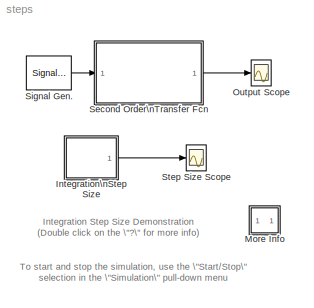
MODEL steps
KIND model
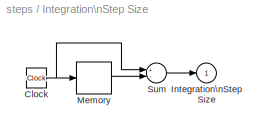
BLOCK [SubSystem] Integration\nStep Size
  MaskDisplay = plot(0,0,100,100,[90,69,69,49,49,27,27,10],[74,74,60,60,40,40,80,80],[27,27],[10,30],[49,49],[10,30],[27,49,49,27],[19,19,21,21])
  MaskIconFrame = on
  MaskIconOpaque = on
  MaskIconRotate = none
  MaskIconUnits = autoscale
  MinAlgLoopOccurrences = off
  Ports = [0, 1]
  PropExecContextAcrossSSBoundary = on
  RTWSystemCode = Auto
  TreatAsAtomicUnit = off
BLOCK [Clock] Integration\nStep Size/Clock
  Decimation = 10
BLOCK [Outport] Integration\nStep Size/Integration\nStep Size
  IconDisplay = Port number
  InitialOutput = 0
BLOCK [Memory] Integration\nStep Size/Memory
BLOCK [Sum] Integration\nStep Size/Sum
  Inputs = +-
  Ports = [2, 1]
BLOCK [SubSystem] More Info
  MaskDisplay = disp('?')
  MaskIconFrame = on
  MaskIconOpaque = on
  MaskIconRotate = none
  MaskIconUnits = autoscale
  MinAlgLoopOccurrences = off
  Ports = []
  PropExecContextAcrossSSBoundary = on
  RTWSystemCode = Auto
  TreatAsAtomicUnit = off
BLOCK [Scope] Output Scope
  DataFormat = Array
  NumInputPorts = 1
  Ports = [1]
  TickLabels = on
  TimeRange = 40
  YMax = 0.75
  YMin = -0.75
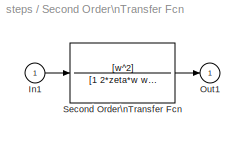
BLOCK [SubSystem] Second Order\nTransfer Fcn
  MaskCallbackString = |
  MaskDescription = Mass-Spring-Damper System
  MaskDisplay = disp('Mass-Spring\\nDamper System')
  MaskEnableString = on,on
  MaskHelp = This block implements the second order transfer function G(s)=num(s)/den(2) where num(s)=w^2 and den(s)=[1 2*zeta*w w^2].
  MaskIconFrame = on
  MaskIconOpaque = on
  MaskIconRotate = none
  MaskIconUnits = autoscale
  MaskInitialization = w=@1;zeta=@2;
  MaskPromptString = Natural Frequency (rad/sec)|Damping
  MaskStyleString = edit,edit
  MaskTabNameString = ,
  MaskToolTipString = on,on
  MaskTunableValueString = on,on
  MaskType = Mass-Spring-Damper System
  MaskValueString = 2|0.5
  MaskVarAliasString = ,
  MaskVisibilityString = on,on
  MinAlgLoopOccurrences = off
  Ports = [1, 1]
  PropExecContextAcrossSSBoundary = on
  RTWSystemCode = Auto
  TreatAsAtomicUnit = off
BLOCK [Inport] Second Order\nTransfer Fcn/In1
  IconDisplay = Port number
  LatchInput = off
  Port = 1
BLOCK [Outport] Second Order\nTransfer Fcn/Out1
  IconDisplay = Port number
  InitialOutput = 0
BLOCK [TransferFcn] Second Order\nTransfer Fcn/Second Order\nTransfer Fcn
  Denominator = [1 2*zeta*w w^2]
  Numerator = [w^2]
BLOCK [SignalGenerator] Signal Gen.
  Frequency = 0.500000
  Ports = [0, 1]
  WaveForm = square
BLOCK [Scope] Step Size Scope
  DataFormat = Array
  NumInputPorts = 1
  Ports = [1]
  TickLabels = on
  TimeRange = 40
  YMax = 0.35
  YMin = -2.77556e-17
ANNOTATION (root): Integration Step Size Demonstration\n(Double click on the \"?\" for more info)
ANNOTATION (root): To start and stop the simulation, use the \"Start/Stop\"\nselection in the \"Simulation\" pull-down menu
ANNOTATION More Info: This model simulates a second order\nmass-spring-damper system. The lower of\nthe two scope blocks shows the integration\nstep size of the current integration algorithm.
ANNOTATION More Info: Try changing the natural frequency and damping\nof this system. You might also try changing the\nintegration algorithm (in the \"Parameters...\" dialog\nunder the \"Simulation\" pull-down menu) to see\nthe effect on integration step size.
NET Integration\nStep Size/Clock:1 -> Integration\nStep Size/Memory:1, Integration\nStep Size/Sum:1
LINE Integration\nStep Size/Memory:1 -> Integration\nStep Size/Sum:2
LINE Integration\nStep Size/Sum:1 -> Integration\nStep Size/Integration\nStep Size:1
LINE Integration\nStep Size:1 -> Step Size Scope:1
LINE Second Order\nTransfer Fcn/In1:1 -> Second Order\nTransfer Fcn/Second Order\nTransfer Fcn:1
LINE Second Order\nTransfer Fcn/Second Order\nTransfer Fcn:1 -> Second Order\nTransfer Fcn/Out1:1
LINE Second Order\nTransfer Fcn:1 -> Output Scope:1
LINE Signal Gen.:1 -> Second Order\nTransfer Fcn:1
note: NET lines group one-source signal fan-out (src -> all destinations, sorted); 1:1 wires keep LINE
